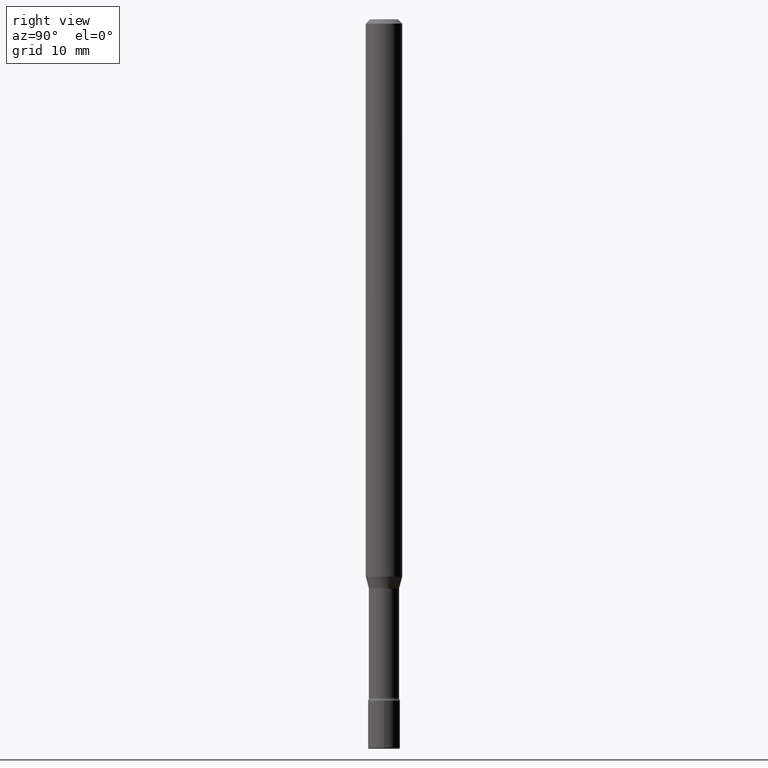
[diagram: clean part render]
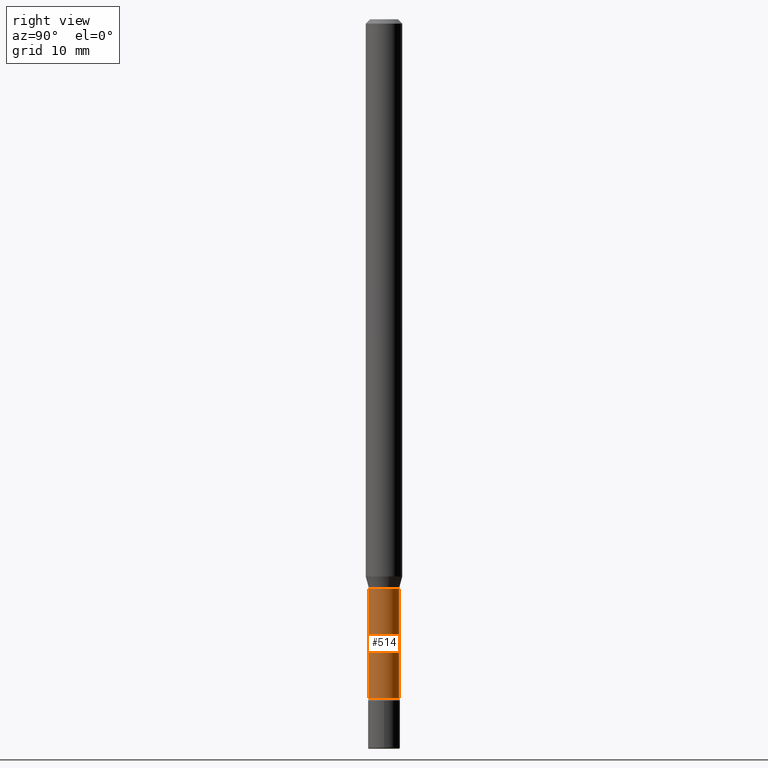
[diagram: same view with one face highlighted and labeled with its STEP entity id]
A machine part, right view. The second image highlights one B-rep face of the part: STEP entity #514.
In plain terms, the highlighted cylindrical surface (edge-blend (fillet) strip) has radius 1.3132 mm, axis along (-0, 0, 1).
Its self-contained STEP definition (entity closure, byte-faithful):
#3 = LINE ( 'NONE', #170, #68 ) ;
#12 = ORIENTED_EDGE ( 'NONE', *, *, #491, .T. ) ;
#68 = VECTOR ( 'NONE', #352, 39.37007874015748143 ) ;
#79 = CYLINDRICAL_SURFACE ( 'NONE', #155, 0.05169999999999998902 ) ;
#95 = EDGE_CURVE ( 'NONE', #130, #223, #499, .T. ) ;
#130 = VERTEX_POINT ( 'NONE', #181 ) ;
#135 = AXIS2_PLACEMENT_3D ( 'NONE', #196, #467, #384 ) ;
#155 = AXIS2_PLACEMENT_3D ( 'NONE', #256, #569, #348 ) ;
#166 = CARTESIAN_POINT ( 'NONE',  ( 4.773330425762376374E-29, -6.815517008895574721E-15, -1.951974787463810923 ) ) ;
#170 = CARTESIAN_POINT ( 'NONE',  ( 3.673505943879716688E-16, 0.05169999999999998902, 2.975576301308702297E-16 ) ) ;
#175 = AXIS2_PLACEMENT_3D ( 'NONE', #166, #198, #248 ) ;
#181 = CARTESIAN_POINT ( 'NONE',  ( -3.610191704363230083E-16, -0.05170000000000810753, -2.325613307291702458 ) ) ;
#196 = CARTESIAN_POINT ( 'NONE',  ( 5.687020564787474071E-29, -8.120113617120347933E-15, -2.325613307291702903 ) ) ;
#198 = DIRECTION ( 'NONE',  ( -2.445385286950522456E-29, 3.491600943140732554E-15, 1.000000000000000000 ) ) ;
#207 = EDGE_LOOP ( 'NONE', ( #263, #12, #294, #565 ) ) ;
#223 = VERTEX_POINT ( 'NONE', #412 ) ;
#248 = DIRECTION ( 'NONE',  ( -6.982962677686266711E-15, -1.000000000000000000, 5.284038672464726492E-15 ) ) ;
#249 = CARTESIAN_POINT ( 'NONE',  ( -3.610191704363322281E-16, -0.05170000000000680995, -1.951974787463810701 ) ) ;
#254 = VECTOR ( 'NONE', #281, 39.37007874015748143 ) ;
#256 = CARTESIAN_POINT ( 'NONE',  ( -1.169113584055446105E-44, 1.669184350826100908E-30, 4.780733988912460139E-16 ) ) ;
#263 = ORIENTED_EDGE ( 'NONE', *, *, #95, .T. ) ;
#281 = DIRECTION ( 'NONE',  ( -2.445385286950522456E-29, 3.491600943140732554E-15, 1.000000000000000000 ) ) ;
#294 = ORIENTED_EDGE ( 'NONE', *, *, #419, .F. ) ;
#298 = FACE_OUTER_BOUND ( 'NONE', #207, .T. ) ;
#301 = VERTEX_POINT ( 'NONE', #249 ) ;
#321 = CARTESIAN_POINT ( 'NONE',  ( -3.610191704363799049E-16, -0.05169999999999998902, 6.585891676516218968E-16 ) ) ;
#345 = VERTEX_POINT ( 'NONE', #509 ) ;
#348 = DIRECTION ( 'NONE',  ( -6.982962677686266711E-15, -1.000000000000000000, 3.491600943140732948E-15 ) ) ;
#352 = DIRECTION ( 'NONE',  ( -2.445385286950522456E-29, 3.491600943140732554E-15, 1.000000000000000000 ) ) ;
#384 = DIRECTION ( 'NONE',  ( -6.982962677686266711E-15, -1.000000000000000000, 5.284038672464726492E-15 ) ) ;
#412 = CARTESIAN_POINT ( 'NONE',  ( 3.790745495280705543E-16, 0.05169999999999187051, -2.325613307291702903 ) ) ;
#419 = EDGE_CURVE ( 'NONE', #301, #345, #477, .T. ) ;
#467 = DIRECTION ( 'NONE',  ( -2.445385286950522456E-29, 3.491600943140732554E-15, 1.000000000000000000 ) ) ;
#477 = CIRCLE ( 'NONE', #175, 0.05169999999999999596 ) ;
#491 = EDGE_CURVE ( 'NONE', #223, #345, #3, .T. ) ;
#499 = CIRCLE ( 'NONE', #135, 0.05169999999999998902 ) ;
#509 = CARTESIAN_POINT ( 'NONE',  ( 3.673505943880287133E-16, 0.05169999999999318890, -1.951974787463811367 ) ) ;
#514 = ADVANCED_FACE ( 'NONE', ( #298 ), #79, .T. ) ;
#546 = EDGE_CURVE ( 'NONE', #130, #301, #560, .T. ) ;
#560 = LINE ( 'NONE', #321, #254 ) ;
#565 = ORIENTED_EDGE ( 'NONE', *, *, #546, .F. ) ;
#569 = DIRECTION ( 'NONE',  ( -2.445385286950522456E-29, 3.491600943140732554E-15, 1.000000000000000000 ) ) ;